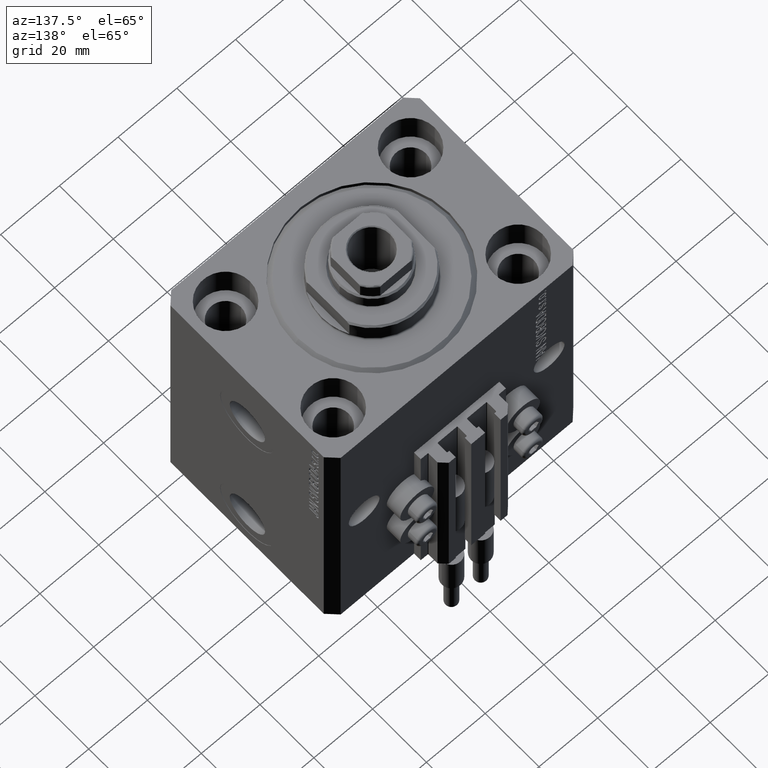
[diagram: clean part render]
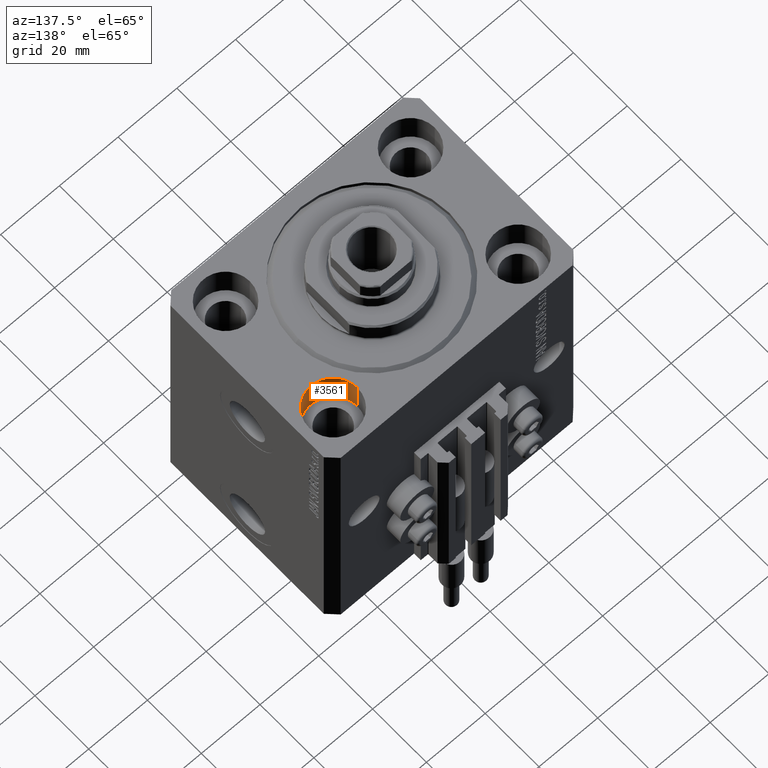
[diagram: same view with one face highlighted and labeled with its STEP entity id]
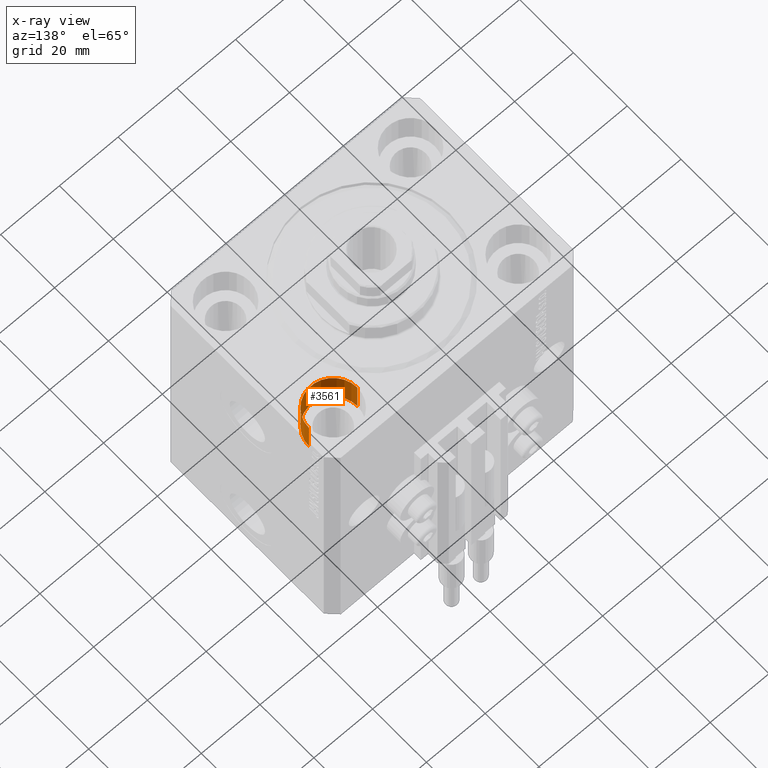
[diagram: x-ray of the same camera — body ghosted, the highlighted face saturated]
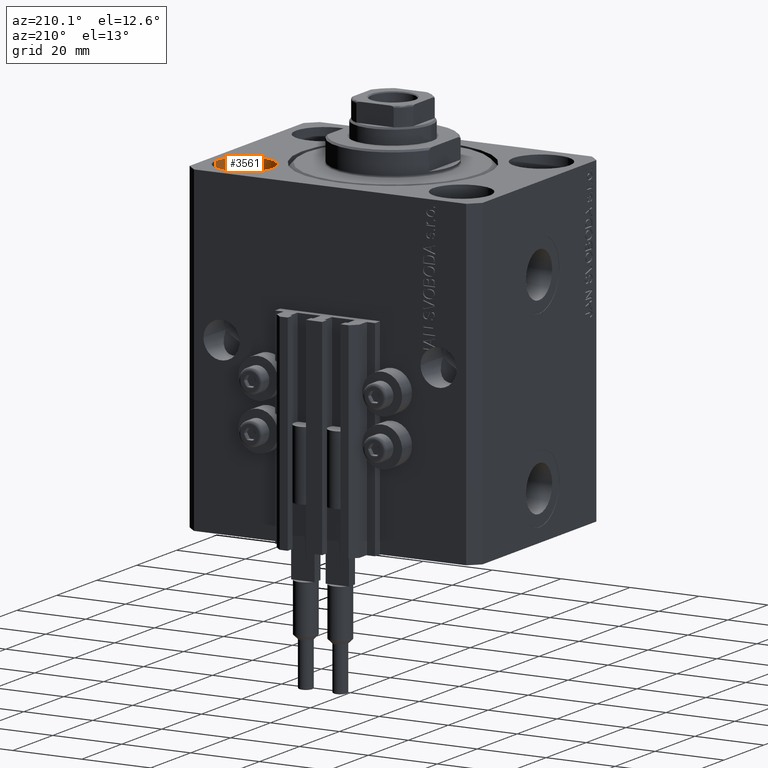
[diagram: same view with one face highlighted and labeled with its STEP entity id]
A machine part, auxiliary view. The second image highlights one B-rep face of the part: STEP entity #3561.
The next image is the same camera in x-ray: the body ghosted, the highlighted face saturated — about 0% of this face is hidden behind the body in this view.
A second angle (auxiliary view) of the same face is appended — the face is thin or edge-on in the first view.
In plain terms, the highlighted cylindrical surface (edge-blend (fillet) strip) has radius 8.25 mm, axis along (0, 0, 1).
Its self-contained STEP definition (entity closure, byte-faithful):
#940 = CYLINDRICAL_SURFACE ( 'NONE', #25571, 8.249999999999992895 ) ;
#1417 = LINE ( 'NONE', #20937, #22612 ) ;
#2169 = CIRCLE ( 'NONE', #29834, 8.249999999999992895 ) ;
#2485 = ORIENTED_EDGE ( 'NONE', *, *, #16298, .F. ) ;
#2766 = LINE ( 'NONE', #5502, #5508 ) ;
#3561 = ADVANCED_FACE ( 'NONE', ( #27657 ), #940, .F. ) ;
#4876 = CARTESIAN_POINT ( 'NONE',  ( 31.50000000000000000, 20.00000000000001066, -11.00000000000000000 ) ) ;
#5502 = CARTESIAN_POINT ( 'NONE',  ( 39.74999999999999289, 20.00000000000001066, -11.00000000000000000 ) ) ;
#5505 = ORIENTED_EDGE ( 'NONE', *, *, #46807, .F. ) ;
#5508 = VECTOR ( 'NONE', #20595, 1000.000000000000000 ) ;
#8594 = DIRECTION ( 'NONE',  ( -0.000000000000000000, -0.000000000000000000, 1.000000000000000000 ) ) ;
#14981 = VERTEX_POINT ( 'NONE', #29264 ) ;
#16267 = DIRECTION ( 'NONE',  ( 1.000000000000000000, 0.000000000000000000, 0.000000000000000000 ) ) ;
#16298 = EDGE_CURVE ( 'NONE', #20940, #46031, #2169, .T. ) ;
#16507 = DIRECTION ( 'NONE',  ( -0.000000000000000000, -0.000000000000000000, 1.000000000000000000 ) ) ;
#17546 = CARTESIAN_POINT ( 'NONE',  ( 39.74999999999999289, 20.00000000000001066, 0.000000000000000000 ) ) ;
#20595 = DIRECTION ( 'NONE',  ( -0.000000000000000000, -0.000000000000000000, 1.000000000000000000 ) ) ;
#20937 = CARTESIAN_POINT ( 'NONE',  ( 23.25000000000000355, 20.00000000000001066, -11.00000000000000000 ) ) ;
#20940 = VERTEX_POINT ( 'NONE', #41292 ) ;
#21854 = CARTESIAN_POINT ( 'NONE',  ( 31.50000000000000000, 20.00000000000001066, 0.000000000000000000 ) ) ;
#21937 = VERTEX_POINT ( 'NONE', #17546 ) ;
#22612 = VECTOR ( 'NONE', #8594, 1000.000000000000000 ) ;
#25571 = AXIS2_PLACEMENT_3D ( 'NONE', #4876, #16507, #16267 ) ;
#27657 = FACE_OUTER_BOUND ( 'NONE', #38664, .T. ) ;
#29264 = CARTESIAN_POINT ( 'NONE',  ( 23.25000000000000355, 20.00000000000001066, 0.000000000000000000 ) ) ;
#29527 = DIRECTION ( 'NONE',  ( 1.000000000000000000, 0.000000000000000000, 0.000000000000000000 ) ) ;
#29834 = AXIS2_PLACEMENT_3D ( 'NONE', #31897, #39827, #47006 ) ;
#31897 = CARTESIAN_POINT ( 'NONE',  ( 31.50000000000000000, 20.00000000000001066, -11.00000000000000000 ) ) ;
#33491 = DIRECTION ( 'NONE',  ( 0.000000000000000000, 0.000000000000000000, 1.000000000000000000 ) ) ;
#35789 = EDGE_CURVE ( 'NONE', #20940, #14981, #1417, .T. ) ;
#38664 = EDGE_LOOP ( 'NONE', ( #2485, #47503, #44230, #5505 ) ) ;
#39658 = CARTESIAN_POINT ( 'NONE',  ( 39.74999999999999289, 20.00000000000001066, -11.00000000000000000 ) ) ;
#39827 = DIRECTION ( 'NONE',  ( 0.000000000000000000, 0.000000000000000000, 1.000000000000000000 ) ) ;
#40587 = CIRCLE ( 'NONE', #46905, 8.249999999999992895 ) ;
#41292 = CARTESIAN_POINT ( 'NONE',  ( 23.25000000000000355, 20.00000000000001066, -11.00000000000000000 ) ) ;
#44230 = ORIENTED_EDGE ( 'NONE', *, *, #48197, .T. ) ;
#46031 = VERTEX_POINT ( 'NONE', #39658 ) ;
#46807 = EDGE_CURVE ( 'NONE', #46031, #21937, #2766, .T. ) ;
#46905 = AXIS2_PLACEMENT_3D ( 'NONE', #21854, #33491, #29527 ) ;
#47006 = DIRECTION ( 'NONE',  ( 1.000000000000000000, 0.000000000000000000, 0.000000000000000000 ) ) ;
#47503 = ORIENTED_EDGE ( 'NONE', *, *, #35789, .T. ) ;
#48197 = EDGE_CURVE ( 'NONE', #14981, #21937, #40587, .T. ) ;